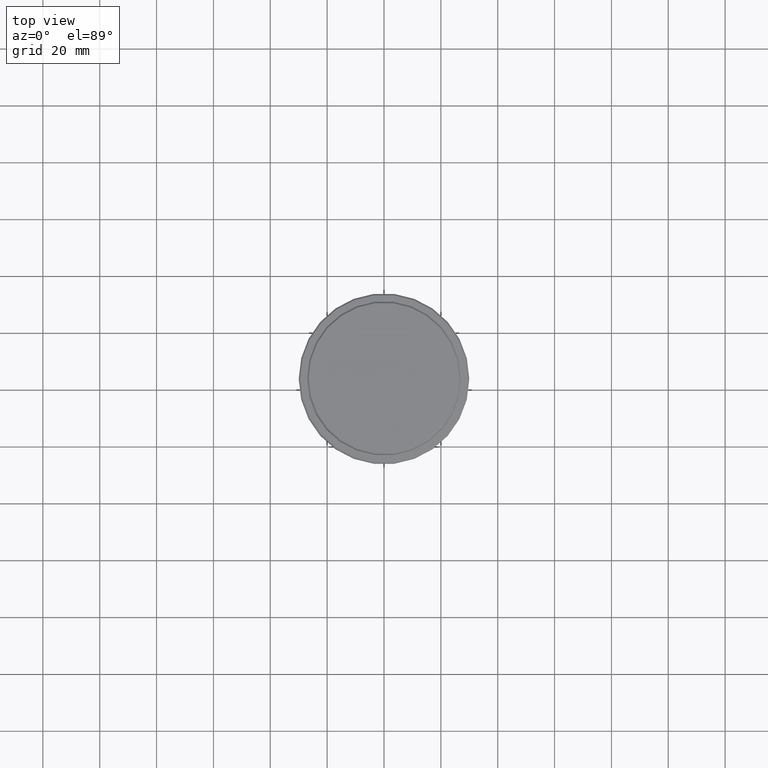
[diagram: clean part render]
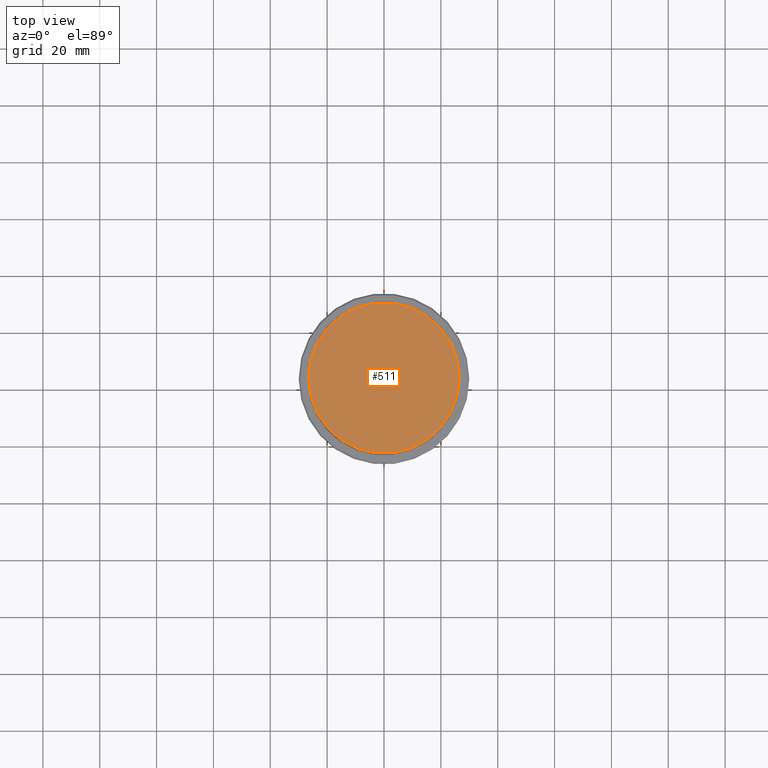
[diagram: same view with one face highlighted and labeled with its STEP entity id]
A machine part, top view. The second image highlights one B-rep face of the part: STEP entity #511.
In plain terms, the highlighted planar face has unit normal (0, -0, 1).
Its self-contained STEP definition (entity closure, byte-faithful):
#41 = PLANE ( 'NONE',  #62 ) ;
#62 = AXIS2_PLACEMENT_3D ( 'NONE', #486, #370, #801 ) ;
#191 = CIRCLE ( 'NONE', #1033, 26.49999999999996803 ) ;
#192 = VERTEX_POINT ( 'NONE', #1327 ) ;
#198 = EDGE_CURVE ( 'NONE', #192, #291, #191, .T. ) ;
#220 = ORIENTED_EDGE ( 'NONE', *, *, #542, .T. ) ;
#291 = VERTEX_POINT ( 'NONE', #397 ) ;
#350 = CARTESIAN_POINT ( 'NONE',  ( 0.000000000000000000, 0.000000000000000000, 0.000000000000000000 ) ) ;
#370 = DIRECTION ( 'NONE',  ( 0.000000000000000000, -0.000000000000000000, 1.000000000000000000 ) ) ;
#397 = CARTESIAN_POINT ( 'NONE',  ( -26.49999999999996803, 0.000000000000000000, 0.000000000000000000 ) ) ;
#409 = CARTESIAN_POINT ( 'NONE',  ( 0.000000000000000000, 0.000000000000000000, 0.000000000000000000 ) ) ;
#486 = CARTESIAN_POINT ( 'NONE',  ( 0.000000000000000000, 0.000000000000000000, 0.000000000000000000 ) ) ;
#511 = ADVANCED_FACE ( 'NONE', ( #583 ), #41, .T. ) ;
#542 = EDGE_CURVE ( 'NONE', #291, #192, #1202, .T. ) ;
#583 = FACE_OUTER_BOUND ( 'NONE', #902, .T. ) ;
#703 = ORIENTED_EDGE ( 'NONE', *, *, #198, .T. ) ;
#799 = DIRECTION ( 'NONE',  ( -0.000000000000000000, -0.000000000000000000, 1.000000000000000000 ) ) ;
#801 = DIRECTION ( 'NONE',  ( 1.000000000000000000, 0.000000000000000000, 0.000000000000000000 ) ) ;
#831 = DIRECTION ( 'NONE',  ( -0.000000000000000000, -0.000000000000000000, 1.000000000000000000 ) ) ;
#902 = EDGE_LOOP ( 'NONE', ( #220, #703 ) ) ;
#918 = AXIS2_PLACEMENT_3D ( 'NONE', #409, #831, #1169 ) ;
#1033 = AXIS2_PLACEMENT_3D ( 'NONE', #350, #799, #1373 ) ;
#1169 = DIRECTION ( 'NONE',  ( 1.000000000000000000, 0.000000000000000000, 0.000000000000000000 ) ) ;
#1202 = CIRCLE ( 'NONE', #918, 26.49999999999996803 ) ;
#1327 = CARTESIAN_POINT ( 'NONE',  ( 26.49999999999996803, 3.275930187719167580E-15, 0.000000000000000000 ) ) ;
#1373 = DIRECTION ( 'NONE',  ( 1.000000000000000000, 0.000000000000000000, 0.000000000000000000 ) ) ;